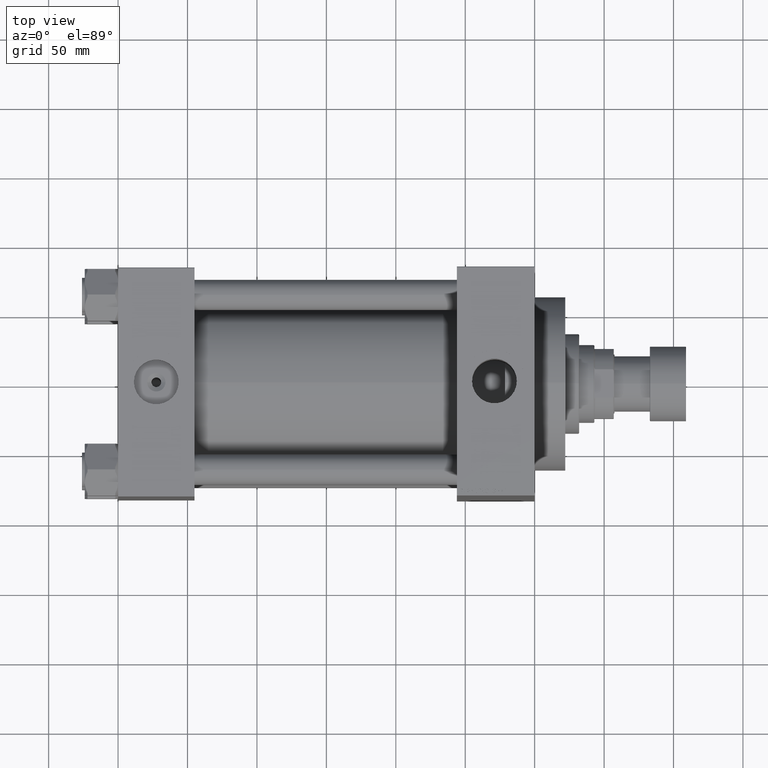
[diagram: clean part render]
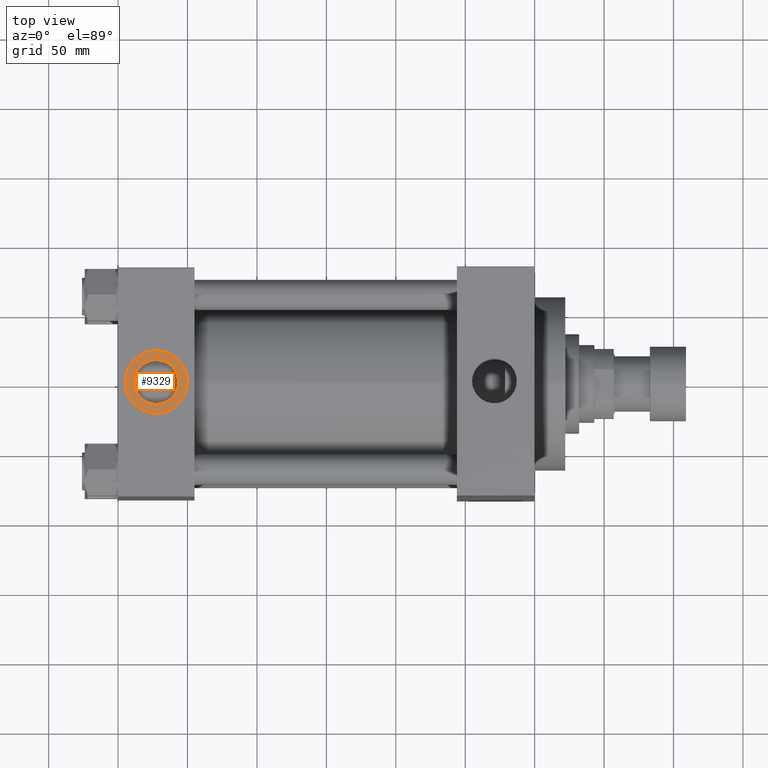
[diagram: same view with one face highlighted and labeled with its STEP entity id]
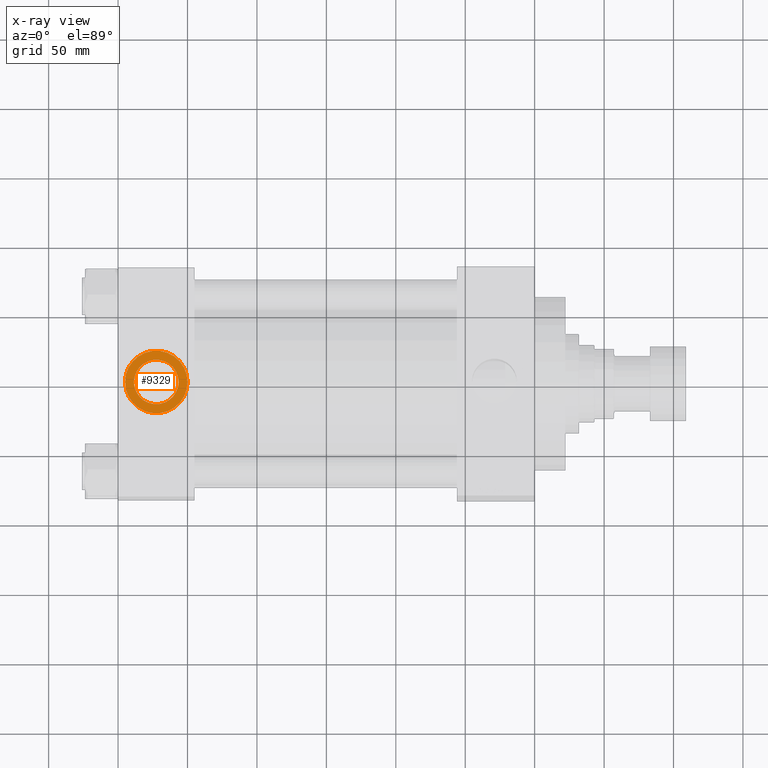
[diagram: x-ray of the same camera — body ghosted, the highlighted face saturated]
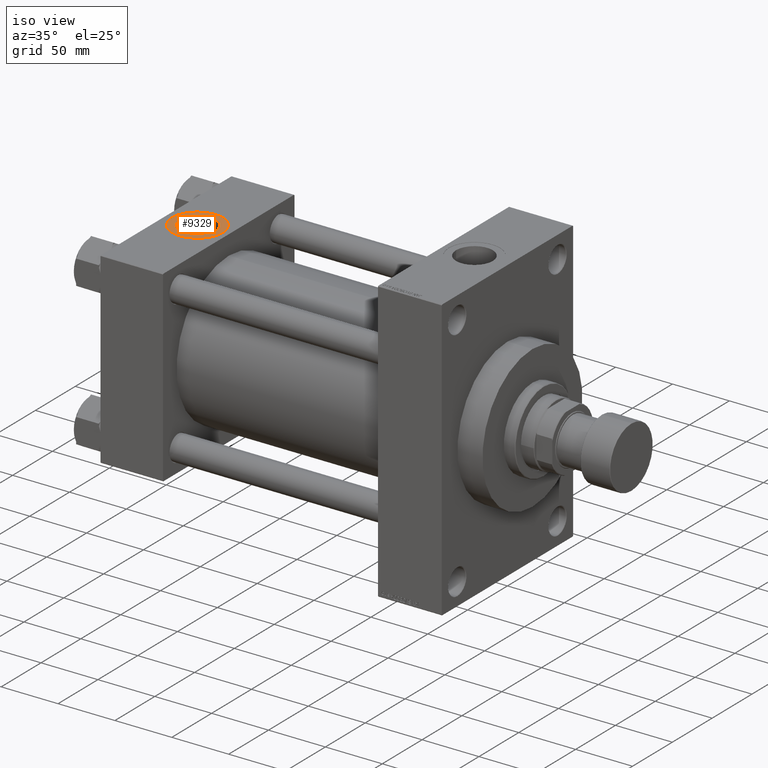
[diagram: same view with one face highlighted and labeled with its STEP entity id]
A machine part, top view. The second image highlights one B-rep face of the part: STEP entity #9329.
The next image is the same camera in x-ray: the body ghosted, the highlighted face saturated — about 0% of this face is hidden behind the body in this view.
A second angle (iso view) of the same face is appended — the face is thin or edge-on in the first view.
In plain terms, the highlighted planar face has unit normal (0, 0, 1).
Its self-contained STEP definition (entity closure, byte-faithful):
#3423 = FACE_BOUND ( 'NONE', #46538, .T. ) ;
#3526 = CARTESIAN_POINT ( 'NONE',  ( 11.37999999999999012, -1.363838064356572430E-14, 82.29999999999996874 ) ) ;
#3728 = CARTESIAN_POINT ( 'NONE',  ( 27.50000000000000000, -1.561251128379125754E-14, 82.29999999999996874 ) ) ;
#5877 = CIRCLE ( 'NONE', #12101, 22.50000000000000355 ) ;
#7349 = CARTESIAN_POINT ( 'NONE',  ( 43.62000000000000455, -1.561251128379125754E-14, 82.29999999999996874 ) ) ;
#7394 = EDGE_CURVE ( 'NONE', #18603, #10504, #26211, .T. ) ;
#9329 = ADVANCED_FACE ( 'NONE', ( #3423, #40924 ), #11442, .T. ) ;
#10184 = DIRECTION ( 'NONE',  ( 1.000000000000000000, 0.000000000000000000, 0.000000000000000000 ) ) ;
#10504 = VERTEX_POINT ( 'NONE', #32335 ) ;
#11215 = CARTESIAN_POINT ( 'NONE',  ( 27.50000000000000000, -1.561251128379125754E-14, 82.29999999999996874 ) ) ;
#11442 = PLANE ( 'NONE',  #14073 ) ;
#11959 = ORIENTED_EDGE ( 'NONE', *, *, #19701, .F. ) ;
#12101 = AXIS2_PLACEMENT_3D ( 'NONE', #11215, #40218, #29962 ) ;
#14073 = AXIS2_PLACEMENT_3D ( 'NONE', #32874, #37257, #41173 ) ;
#14353 = ORIENTED_EDGE ( 'NONE', *, *, #33930, .F. ) ;
#16808 = CARTESIAN_POINT ( 'NONE',  ( 50.00000000000000000, -1.561251128379125754E-14, 82.29999999999996874 ) ) ;
#18230 = ORIENTED_EDGE ( 'NONE', *, *, #32834, .T. ) ;
#18603 = VERTEX_POINT ( 'NONE', #16808 ) ;
#19701 = EDGE_CURVE ( 'NONE', #46586, #24039, #41181, .T. ) ;
#20163 = AXIS2_PLACEMENT_3D ( 'NONE', #3728, #37317, #37075 ) ;
#21135 = DIRECTION ( 'NONE',  ( 0.000000000000000000, 0.000000000000000000, 1.000000000000000000 ) ) ;
#22353 = AXIS2_PLACEMENT_3D ( 'NONE', #33019, #33489, #47880 ) ;
#24039 = VERTEX_POINT ( 'NONE', #3526 ) ;
#26211 = CIRCLE ( 'NONE', #22353, 22.50000000000000355 ) ;
#29962 = DIRECTION ( 'NONE',  ( 1.000000000000000000, 0.000000000000000000, 0.000000000000000000 ) ) ;
#30000 = CIRCLE ( 'NONE', #47141, 16.12000000000000455 ) ;
#32335 = CARTESIAN_POINT ( 'NONE',  ( 4.999999999999993783, -1.285705598570971355E-14, 82.29999999999996874 ) ) ;
#32834 = EDGE_CURVE ( 'NONE', #10504, #18603, #5877, .T. ) ;
#32874 = CARTESIAN_POINT ( 'NONE',  ( 27.50000000000000000, -1.561251128379125754E-14, 82.29999999999996874 ) ) ;
#33019 = CARTESIAN_POINT ( 'NONE',  ( 27.50000000000000000, -1.561251128379125754E-14, 82.29999999999996874 ) ) ;
#33489 = DIRECTION ( 'NONE',  ( 0.000000000000000000, 0.000000000000000000, 1.000000000000000000 ) ) ;
#33930 = EDGE_CURVE ( 'NONE', #24039, #46586, #30000, .T. ) ;
#36491 = CARTESIAN_POINT ( 'NONE',  ( 27.50000000000000000, -1.561251128379125754E-14, 82.29999999999996874 ) ) ;
#37075 = DIRECTION ( 'NONE',  ( 1.000000000000000000, 0.000000000000000000, 0.000000000000000000 ) ) ;
#37257 = DIRECTION ( 'NONE',  ( 0.000000000000000000, 0.000000000000000000, 1.000000000000000000 ) ) ;
#37317 = DIRECTION ( 'NONE',  ( 0.000000000000000000, 0.000000000000000000, 1.000000000000000000 ) ) ;
#39286 = EDGE_LOOP ( 'NONE', ( #44481, #18230 ) ) ;
#40218 = DIRECTION ( 'NONE',  ( 0.000000000000000000, 0.000000000000000000, 1.000000000000000000 ) ) ;
#40924 = FACE_OUTER_BOUND ( 'NONE', #39286, .T. ) ;
#41173 = DIRECTION ( 'NONE',  ( 1.000000000000000000, 0.000000000000000000, -0.000000000000000000 ) ) ;
#41181 = CIRCLE ( 'NONE', #20163, 16.12000000000000455 ) ;
#44481 = ORIENTED_EDGE ( 'NONE', *, *, #7394, .T. ) ;
#46538 = EDGE_LOOP ( 'NONE', ( #11959, #14353 ) ) ;
#46586 = VERTEX_POINT ( 'NONE', #7349 ) ;
#47141 = AXIS2_PLACEMENT_3D ( 'NONE', #36491, #21135, #10184 ) ;
#47880 = DIRECTION ( 'NONE',  ( 1.000000000000000000, 0.000000000000000000, 0.000000000000000000 ) ) ;